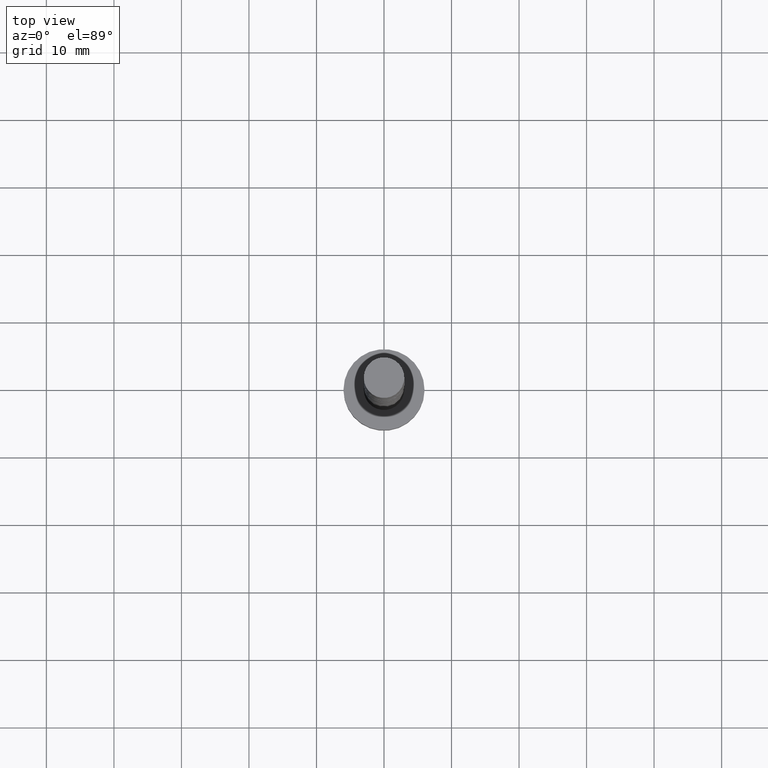
[diagram: clean part render]
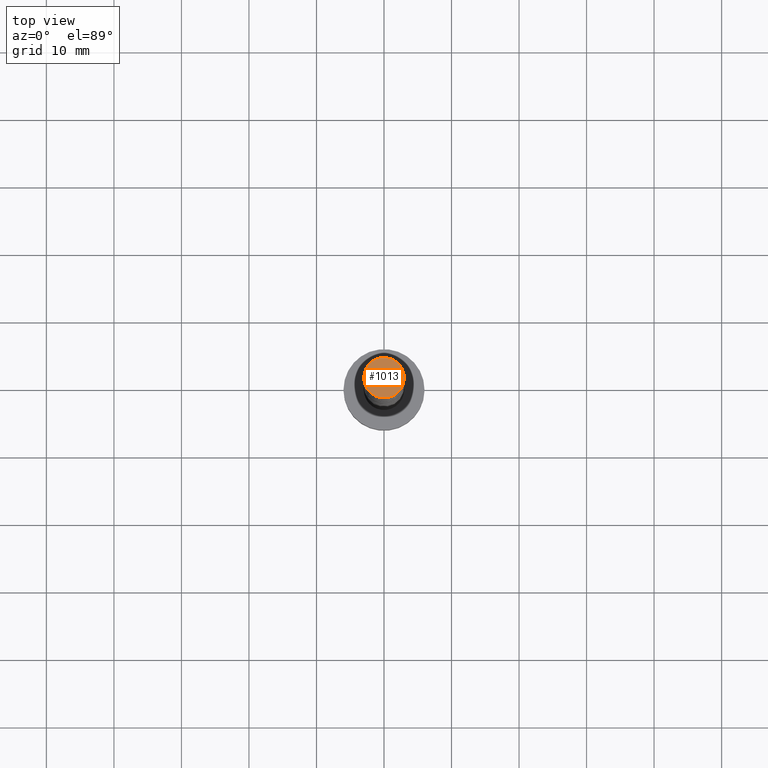
[diagram: same view with one face highlighted and labeled with its STEP entity id]
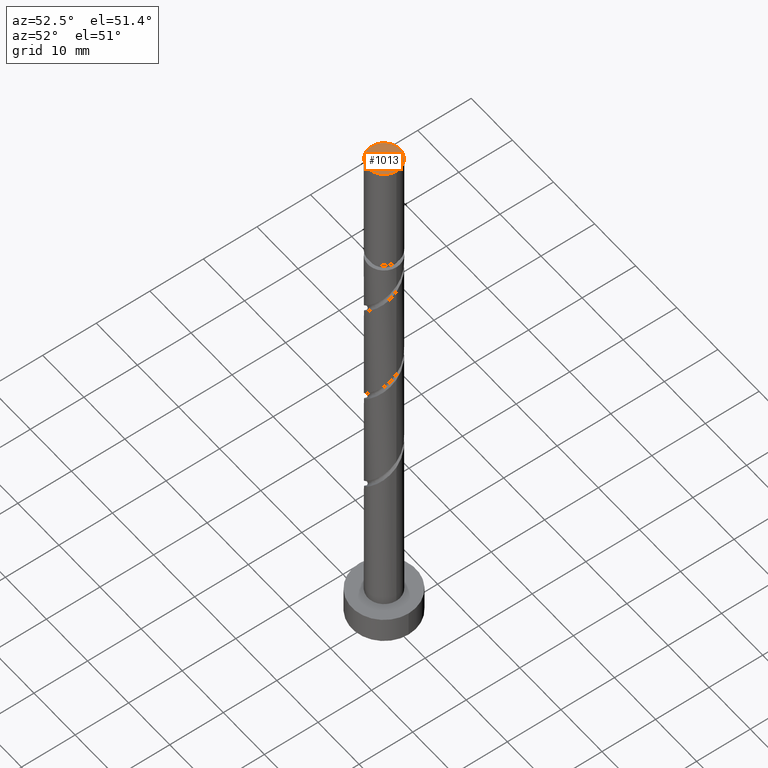
[diagram: same view with one face highlighted and labeled with its STEP entity id]
A machine part, top view. The second image highlights one B-rep face of the part: STEP entity #1013.
A second angle (auxiliary view) of the same face is appended — the face is thin or edge-on in the first view.
In plain terms, the highlighted planar face has unit normal (0, 0, 1).
Its self-contained STEP definition (entity closure, byte-faithful):
#36 = CIRCLE ( 'NONE', #1134, 3.000000000000000444 ) ;
#57 = CIRCLE ( 'NONE', #1540, 3.000000000000000444 ) ;
#85 = AXIS2_PLACEMENT_3D ( 'NONE', #1318, #91, #1180 ) ;
#91 = DIRECTION ( 'NONE',  ( 0.000000000000000000, 0.000000000000000000, 1.000000000000000000 ) ) ;
#132 = CARTESIAN_POINT ( 'NONE',  ( 0.000000000000000000, 0.000000000000000000, 107.0000000000000000 ) ) ;
#156 = DIRECTION ( 'NONE',  ( 1.000000000000000000, 0.000000000000000000, 0.000000000000000000 ) ) ;
#228 = PLANE ( 'NONE',  #85 ) ;
#248 = VERTEX_POINT ( 'NONE', #1189 ) ;
#363 = EDGE_CURVE ( 'NONE', #248, #404, #57, .T. ) ;
#404 = VERTEX_POINT ( 'NONE', #681 ) ;
#525 = CARTESIAN_POINT ( 'NONE',  ( 0.000000000000000000, 0.000000000000000000, 107.0000000000000000 ) ) ;
#643 = EDGE_CURVE ( 'NONE', #404, #248, #36, .T. ) ;
#647 = ORIENTED_EDGE ( 'NONE', *, *, #643, .T. ) ;
#681 = CARTESIAN_POINT ( 'NONE',  ( -3.000000000000000444, 0.000000000000000000, 107.0000000000000000 ) ) ;
#778 = DIRECTION ( 'NONE',  ( 0.000000000000000000, 0.000000000000000000, 1.000000000000000000 ) ) ;
#856 = DIRECTION ( 'NONE',  ( 1.000000000000000000, 0.000000000000000000, 0.000000000000000000 ) ) ;
#1013 = ADVANCED_FACE ( 'NONE', ( #1192 ), #228, .T. ) ;
#1134 = AXIS2_PLACEMENT_3D ( 'NONE', #525, #1481, #856 ) ;
#1180 = DIRECTION ( 'NONE',  ( 1.000000000000000000, 0.000000000000000000, -0.000000000000000000 ) ) ;
#1189 = CARTESIAN_POINT ( 'NONE',  ( 3.000000000000000444, 3.673940397442060361E-16, 107.0000000000000000 ) ) ;
#1192 = FACE_OUTER_BOUND ( 'NONE', #1489, .T. ) ;
#1318 = CARTESIAN_POINT ( 'NONE',  ( 0.000000000000000000, 0.000000000000000000, 107.0000000000000000 ) ) ;
#1360 = ORIENTED_EDGE ( 'NONE', *, *, #363, .T. ) ;
#1481 = DIRECTION ( 'NONE',  ( 0.000000000000000000, 0.000000000000000000, 1.000000000000000000 ) ) ;
#1489 = EDGE_LOOP ( 'NONE', ( #647, #1360 ) ) ;
#1540 = AXIS2_PLACEMENT_3D ( 'NONE', #132, #778, #156 ) ;